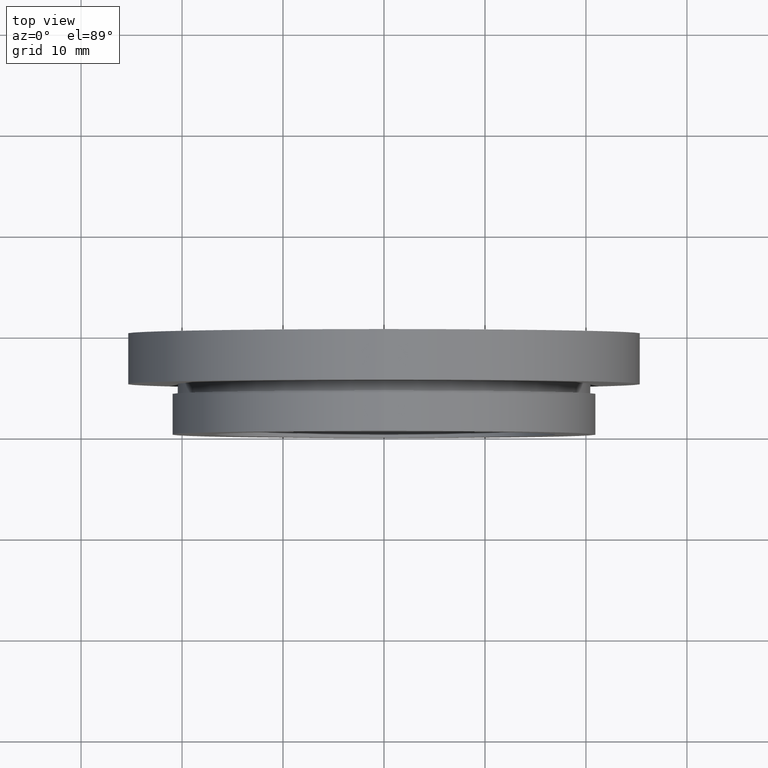
[diagram: clean part render]
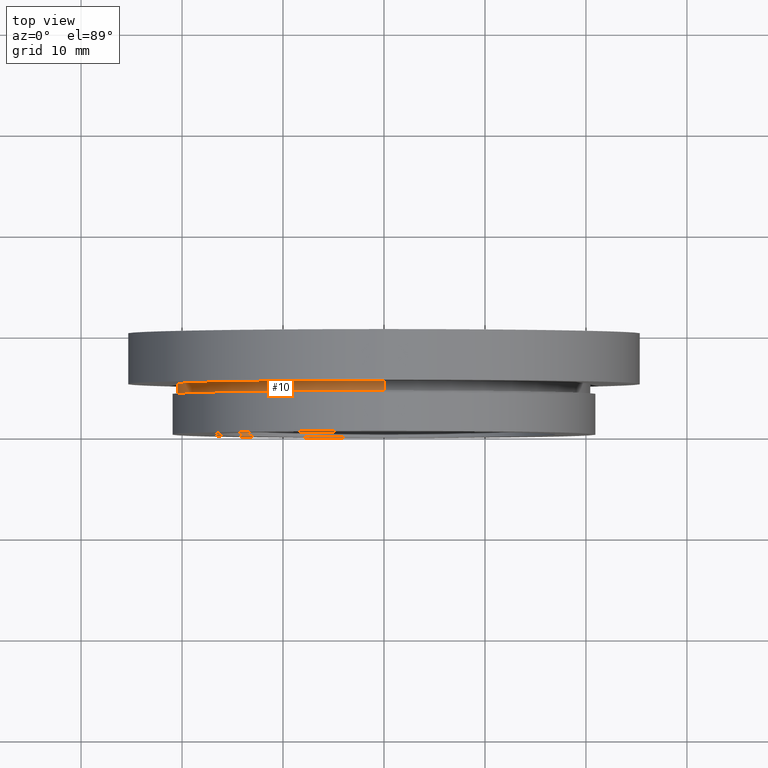
[diagram: same view with one face highlighted and labeled with its STEP entity id]
A machine part, top view. The second image highlights one B-rep face of the part: STEP entity #10.
In plain terms, the highlighted cylindrical surface (partial cylindrical patch) has radius 20.5 mm, axis along (-0, 1, -0).
Its self-contained STEP definition (entity closure, byte-faithful):
#10 = ADVANCED_FACE ( 'NONE', ( #511 ), #22, .T. ) ;
#22 = CYLINDRICAL_SURFACE ( 'NONE', #308, 20.50000000000000000 ) ;
#44 = EDGE_CURVE ( 'NONE', #406, #49, #234, .T. ) ;
#49 = VERTEX_POINT ( 'NONE', #214 ) ;
#114 = EDGE_CURVE ( 'NONE', #531, #504, #187, .T. ) ;
#125 = DIRECTION ( 'NONE',  ( -0.0000000000000000000, 1.000000000000000000, -0.0000000000000000000 ) ) ;
#131 = EDGE_CURVE ( 'NONE', #406, #531, #217, .T. ) ;
#183 = CARTESIAN_POINT ( 'NONE',  ( 2.510525938252074500E-015, 13.74468085106383300, -20.50000000000000000 ) ) ;
#186 = DIRECTION ( 'NONE',  ( 0.0000000000000000000, 0.0000000000000000000, 1.000000000000000000 ) ) ;
#187 = CIRCLE ( 'NONE', #237, 20.50000000000000000 ) ;
#188 = CARTESIAN_POINT ( 'NONE',  ( 0.0000000000000000000, 4.999999999999999100, 0.0000000000000000000 ) ) ;
#205 = VECTOR ( 'NONE', #125, 1000.000000000000000 ) ;
#212 = ORIENTED_EDGE ( 'NONE', *, *, #131, .F. ) ;
#214 = CARTESIAN_POINT ( 'NONE',  ( 0.0000000000000000000, 4.000000000000000000, 20.50000000000000000 ) ) ;
#215 = DIRECTION ( 'NONE',  ( 0.0000000000000000000, 0.0000000000000000000, 1.000000000000000000 ) ) ;
#216 = CARTESIAN_POINT ( 'NONE',  ( 0.0000000000000000000, 4.000000000000000000, 0.0000000000000000000 ) ) ;
#217 = LINE ( 'NONE', #183, #205 ) ;
#234 = CIRCLE ( 'NONE', #272, 20.50000000000000000 ) ;
#235 = EDGE_LOOP ( 'NONE', ( #212, #536, #487, #249 ) ) ;
#237 = AXIS2_PLACEMENT_3D ( 'NONE', #188, #491, #186 ) ;
#239 = DIRECTION ( 'NONE',  ( -0.0000000000000000000, 1.000000000000000000, -0.0000000000000000000 ) ) ;
#249 = ORIENTED_EDGE ( 'NONE', *, *, #114, .F. ) ;
#262 = EDGE_CURVE ( 'NONE', #49, #504, #618, .T. ) ;
#272 = AXIS2_PLACEMENT_3D ( 'NONE', #216, #297, #382 ) ;
#281 = CARTESIAN_POINT ( 'NONE',  ( 2.510525938252074500E-015, 4.999999999999999100, -20.50000000000000000 ) ) ;
#285 = VECTOR ( 'NONE', #553, 1000.000000000000000 ) ;
#297 = DIRECTION ( 'NONE',  ( -0.0000000000000000000, 1.000000000000000000, -0.0000000000000000000 ) ) ;
#308 = AXIS2_PLACEMENT_3D ( 'NONE', #441, #239, #215 ) ;
#382 = DIRECTION ( 'NONE',  ( 0.0000000000000000000, 0.0000000000000000000, 1.000000000000000000 ) ) ;
#406 = VERTEX_POINT ( 'NONE', #550 ) ;
#441 = CARTESIAN_POINT ( 'NONE',  ( 0.0000000000000000000, 13.74468085106383300, 0.0000000000000000000 ) ) ;
#487 = ORIENTED_EDGE ( 'NONE', *, *, #262, .T. ) ;
#491 = DIRECTION ( 'NONE',  ( -0.0000000000000000000, 1.000000000000000000, -0.0000000000000000000 ) ) ;
#504 = VERTEX_POINT ( 'NONE', #510 ) ;
#510 = CARTESIAN_POINT ( 'NONE',  ( 0.0000000000000000000, 4.999999999999999100, 20.50000000000000000 ) ) ;
#511 = FACE_OUTER_BOUND ( 'NONE', #235, .T. ) ;
#531 = VERTEX_POINT ( 'NONE', #281 ) ;
#536 = ORIENTED_EDGE ( 'NONE', *, *, #44, .T. ) ;
#550 = CARTESIAN_POINT ( 'NONE',  ( 2.510525938252074500E-015, 4.000000000000000000, -20.50000000000000000 ) ) ;
#553 = DIRECTION ( 'NONE',  ( -0.0000000000000000000, 1.000000000000000000, -0.0000000000000000000 ) ) ;
#607 = CARTESIAN_POINT ( 'NONE',  ( 0.0000000000000000000, 13.74468085106383300, 20.50000000000000000 ) ) ;
#618 = LINE ( 'NONE', #607, #285 ) ;